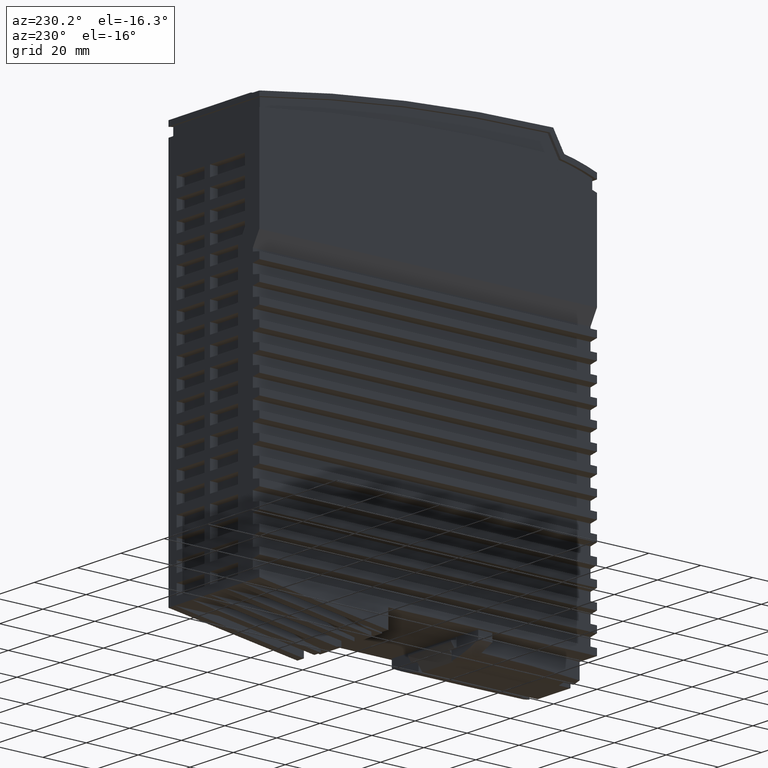
[diagram: clean part render]
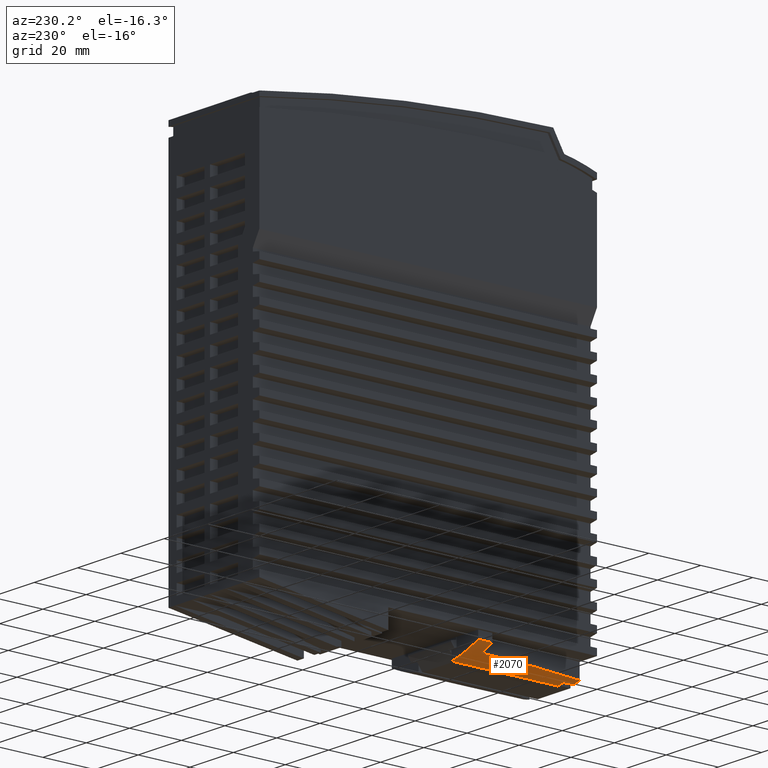
[diagram: same view with one face highlighted and labeled with its STEP entity id]
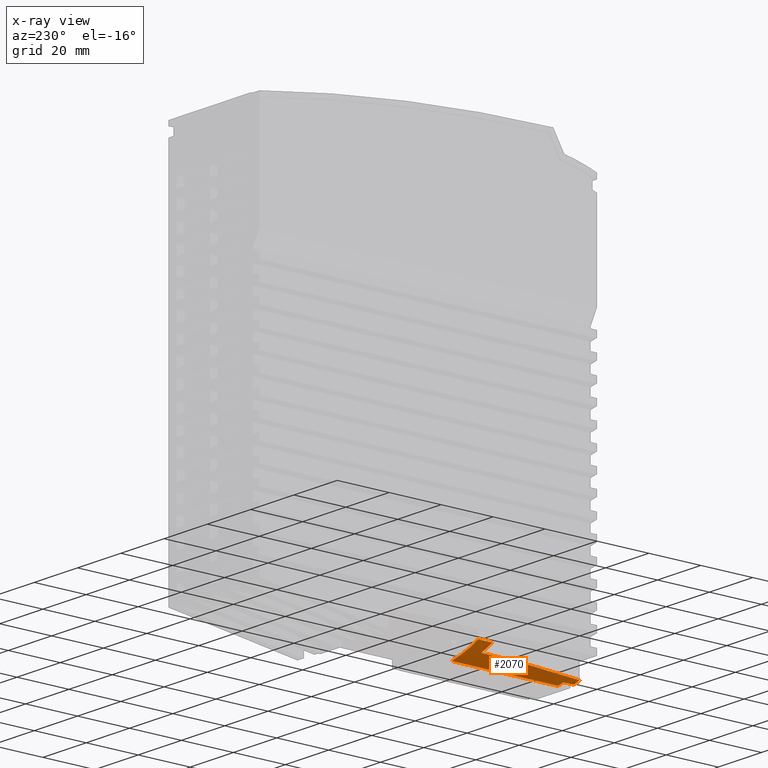
[diagram: x-ray of the same camera — body ghosted, the highlighted face saturated]
A machine part, auxiliary view. The second image highlights one B-rep face of the part: STEP entity #2070.
The next image is the same camera in x-ray: the body ghosted, the highlighted face saturated — about 0% of this face is hidden behind the body in this view.
In plain terms, the highlighted cylindrical surface (partial cylindrical patch) has radius 46.1 mm, axis along (0, -1, 0).
Its self-contained STEP definition (entity closure, byte-faithful):
#1040=CARTESIAN_POINT('',(38.53,0.,-29.5));
#1050=DIRECTION('',(0.,-1.,0.));
#1060=DIRECTION('',(0.,0.,1.));
#1070=AXIS2_PLACEMENT_3D('',#1040,#1050,#1060);
#1080=CYLINDRICAL_SURFACE('',#1070,46.1);
#1090=CARTESIAN_POINT('',(38.53,44.85,-29.5));
#1100=DIRECTION('',(0.,-1.,0.));
#1110=DIRECTION('',(0.,0.,1.));
#1120=AXIS2_PLACEMENT_3D('',#1090,#1100,#1110);
#1130=CIRCLE('',#1120,46.1);
#1140=CARTESIAN_POINT('',(-3.00564734056761,44.85,-9.49999999999999));
#1150=VERTEX_POINT('',#1140);
#1160=CARTESIAN_POINT('',(-6.93922035839191,44.85,-21.9));
#1170=VERTEX_POINT('',#1160);
#1180=EDGE_CURVE('',#1150,#1170,#1130,.T.);
#1190=ORIENTED_EDGE('',*,*,#1180,.T.);
#1200=CARTESIAN_POINT('',(-3.00564734056761,0.,-9.49999999999999));
#1210=DIRECTION('',(0.,-1.,0.));
#1220=VECTOR('',#1210,1.);
#1230=LINE('',#1200,#1220);
#1240=CARTESIAN_POINT('',(-3.00564734056761,39.5,-9.49999999999999));
#1250=VERTEX_POINT('',#1240);
#1260=EDGE_CURVE('',#1150,#1250,#1230,.T.);
#1270=ORIENTED_EDGE('',*,*,#1260,.F.);
#1280=CARTESIAN_POINT('',(38.53,39.5,-29.5));
#1290=DIRECTION('',(0.,-1.,0.));
#1300=DIRECTION('',(0.,0.,1.));
#1310=AXIS2_PLACEMENT_3D('',#1280,#1290,#1300);
#1320=CIRCLE('',#1310,46.1);
#1330=CARTESIAN_POINT('',(-5.06139823405462,39.5,-14.499999999998));
#1340=VERTEX_POINT('',#1330);
#1350=EDGE_CURVE('',#1250,#1340,#1320,.T.);
#1360=ORIENTED_EDGE('',*,*,#1350,.F.);
#1370=CARTESIAN_POINT('',(0.,41.47129019691,-444.495481389));
#1380=DIRECTION('',(-1.,0.,0.));
#1390=DIRECTION('',(0.,-0.0952820702253681,0.99545031372418));
#1400=AXIS2_PLACEMENT_3D('',#1370,#1380,#1390);
#1410=CYLINDRICAL_SURFACE('',#1400,430.);
#1420=CARTESIAN_POINT('',(-5.06139823405462,39.4999999999998,
-14.499999999998));
#1430=CARTESIAN_POINT('',(-5.06399858330399,37.8516305703378,
-14.5075568573098));
#1440=CARTESIAN_POINT('',(-5.06986180219706,36.2033068102937,
-14.5245922813647));
#1450=CARTESIAN_POINT('',(-5.07895013087571,34.5551484258962,
-14.5511047738348));
#1460=CARTESIAN_POINT('',(-5.08803837741696,32.9070049370264,
-14.5776170266935));
#1470=CARTESIAN_POINT('',(-5.10035195443536,31.2589818016032,
-14.6136070745123));
#1480=CARTESIAN_POINT('',(-5.11581125324694,29.6112439924109,
-14.6590714560731));
#1490=CARTESIAN_POINT('',(-5.13127058488572,27.9635026843143,
-14.7045359341757));
#1500=CARTESIAN_POINT('',(-5.14987529893483,26.3160728902877,
-14.759473898626));
#1510=CARTESIAN_POINT('',(-5.17150434697232,24.6690764368435,
-14.8238793337082));
#1520=CARTESIAN_POINT('',(-5.19313391565307,23.0220403377529,
-14.8882863191247));
#1530=CARTESIAN_POINT('',(-5.21779091114774,21.3752135803417,
-14.9621701576167));
#1540=CARTESIAN_POINT('',(-5.24531541610016,19.7287615639826,
-15.0455280199883));
#1550=CARTESIAN_POINT('',(-5.27283991981511,18.0823096216458,
-15.1288858786122));
#1560=CARTESIAN_POINT('',(-5.30323184546424,16.4362327193659,
-15.2217177500559));
#1570=CARTESIAN_POINT('',(-5.3362911809917,14.7906973838604,
-15.3240168586281));
#1580=CARTESIAN_POINT('',(-5.36935051573429,13.1451620874219,
-15.4263159647717));
#1590=CARTESIAN_POINT('',(-5.40507715610146,11.50016862361,
-15.538082291923));
#1600=CARTESIAN_POINT('',(-5.44323237803876,9.85588351700381,
-15.6593051392996));
#1610=CARTESIAN_POINT('',(-5.48138759971025,8.2115984218523,
-15.7805279858317));
#1620=CARTESIAN_POINT('',(-5.52197128649219,6.56802191472828,
-15.9112073331007));
#1630=CARTESIAN_POINT('',(-5.56470760010951,4.92531962195044,
-16.0513286284165));
#1640=CARTESIAN_POINT('',(-5.60744391396511,3.28261732001333,
-16.1914499245135));
#1650=CARTESIAN_POINT('',(-5.65233273081868,1.64078942742196,
-16.341013147437));
#1660=CARTESIAN_POINT('',(-5.69906284333236,1.9927413359163E-10,
-16.4999999999785));
#1670=B_SPLINE_CURVE_WITH_KNOTS('',3,(#1420,#1430,#1440,#1450,#1460,
#1470,#1480,#1490,#1500,#1510,#1520,#1530,#1540,#1550,#1560,#1570,#1580,
#1590,#1600,#1610,#1620,#1630,#1640,#1650,#1660),.UNSPECIFIED.,.F.,.F.,(
4,3,3,3,3,3,3,3,4),(0.,4.9451772415053,9.89042815024404,14.8356866410108
,19.7815518675038,24.7283289103227,29.6757051614214,34.6233494954045,
39.5709158008127),.UNSPECIFIED.);
#1680=SURFACE_CURVE('',#1670,(#1410,#1080),.CURVE_3D.);
#1690=CARTESIAN_POINT('',(-5.69906284333896,-3.32818217430031E-11,
-16.5000000000011));
#1700=VERTEX_POINT('',#1690);
#1710=EDGE_CURVE('',#1340,#1700,#1680,.T.);
#1720=ORIENTED_EDGE('',*,*,#1710,.F.);
#1730=CARTESIAN_POINT('',(38.53,0.,-29.5));
#1740=DIRECTION('',(0.,-1.,0.));
#1750=DIRECTION('',(0.,0.,1.));
#1760=AXIS2_PLACEMENT_3D('',#1730,#1740,#1750);
#1770=CIRCLE('',#1760,46.1);
#1780=CARTESIAN_POINT('',(-6.42742430344515,0.,-19.3));
#1790=VERTEX_POINT('',#1780);
#1800=EDGE_CURVE('',#1700,#1790,#1770,.T.);
#1810=ORIENTED_EDGE('',*,*,#1800,.F.);
#1820=CARTESIAN_POINT('',(-6.42742430344515,0.,-19.3));
#1830=DIRECTION('',(0.,-1.,0.));
#1840=VECTOR('',#1830,1.);
#1850=LINE('',#1820,#1840);
#1860=CARTESIAN_POINT('',(-6.42742430344515,3.9,-19.3));
#1870=VERTEX_POINT('',#1860);
#1880=EDGE_CURVE('',#1870,#1790,#1850,.T.);
#1890=ORIENTED_EDGE('',*,*,#1880,.T.);
#1900=CARTESIAN_POINT('',(38.53,3.9,-29.5));
#1910=DIRECTION('',(0.,-1.,0.));
#1920=DIRECTION('',(0.,0.,1.));
#1930=AXIS2_PLACEMENT_3D('',#1900,#1910,#1920);
#1940=CIRCLE('',#1930,46.1);
#1950=CARTESIAN_POINT('',(-6.93922035839191,3.9,-21.9));
#1960=VERTEX_POINT('',#1950);
#1970=EDGE_CURVE('',#1870,#1960,#1940,.T.);
#1980=ORIENTED_EDGE('',*,*,#1970,.F.);
#1990=CARTESIAN_POINT('',(-6.93922035839191,0.,-21.9));
#2000=DIRECTION('',(0.,-1.,0.));
#2010=VECTOR('',#2000,1.);
#2020=LINE('',#1990,#2010);
#2030=EDGE_CURVE('',#1170,#1960,#2020,.T.);
#2040=ORIENTED_EDGE('',*,*,#2030,.T.);
#2050=EDGE_LOOP('',(#2040,#1980,#1890,#1810,#1720,#1360,#1270,#1190));
#2060=FACE_OUTER_BOUND('',#2050,.T.);
#2070=ADVANCED_FACE('',(#2060),#1080,.T.);